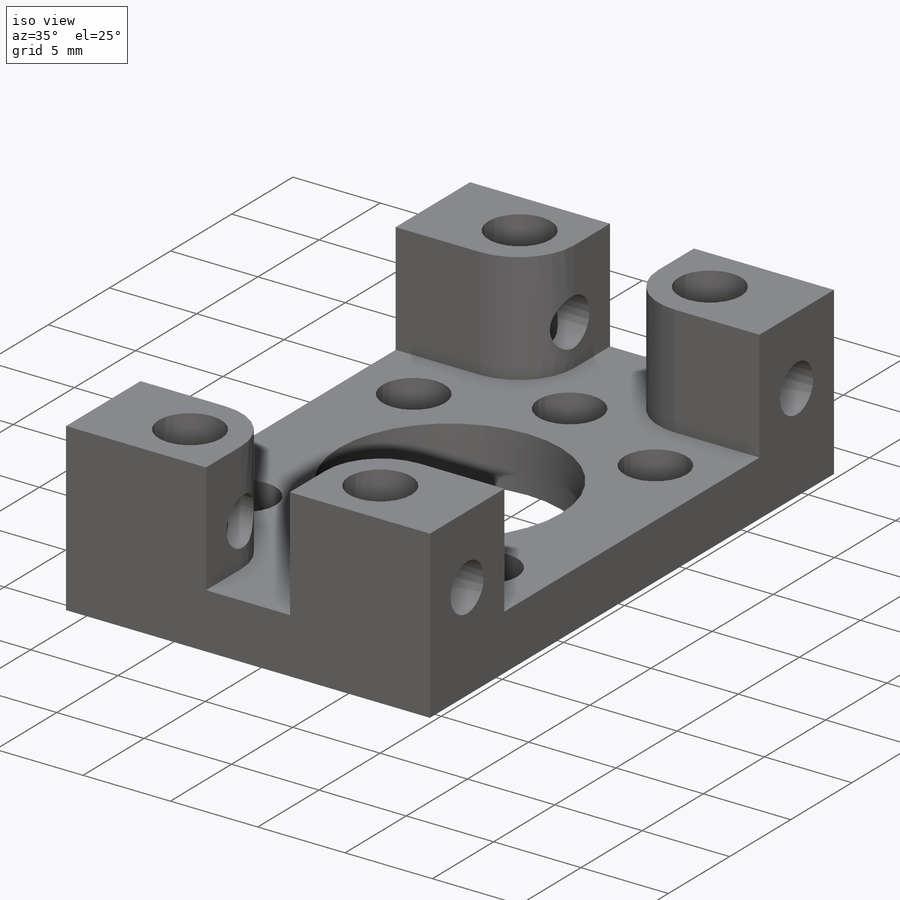
[diagram: iso view]
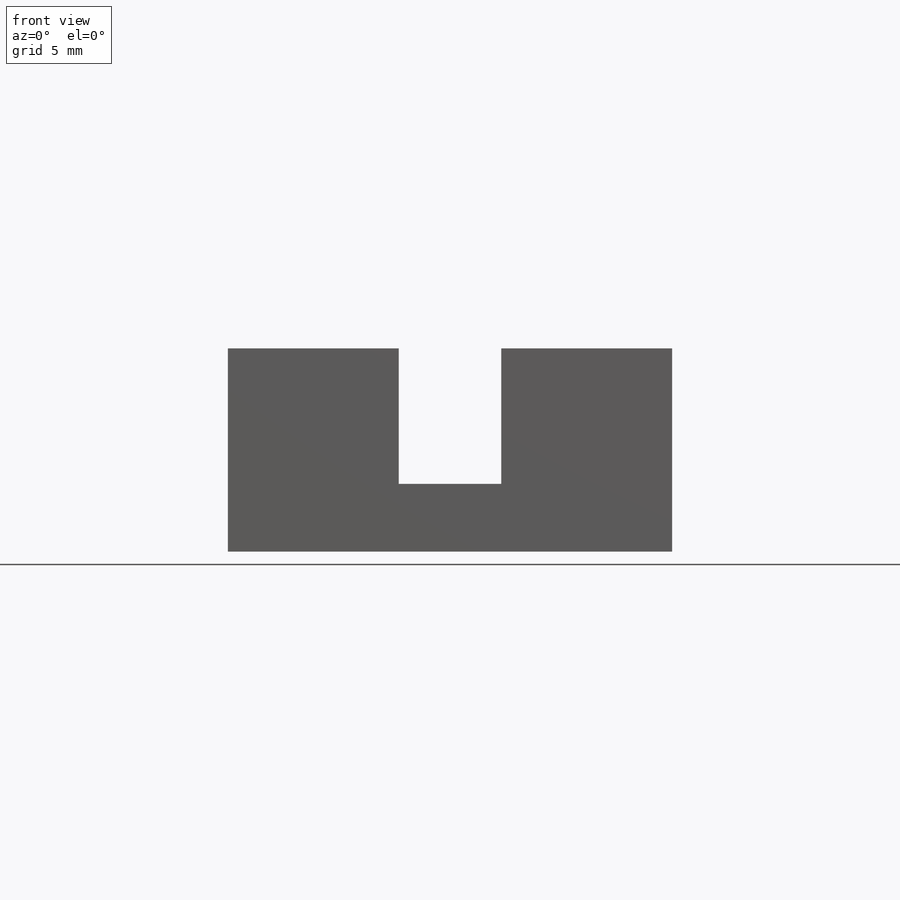
[diagram: front view]
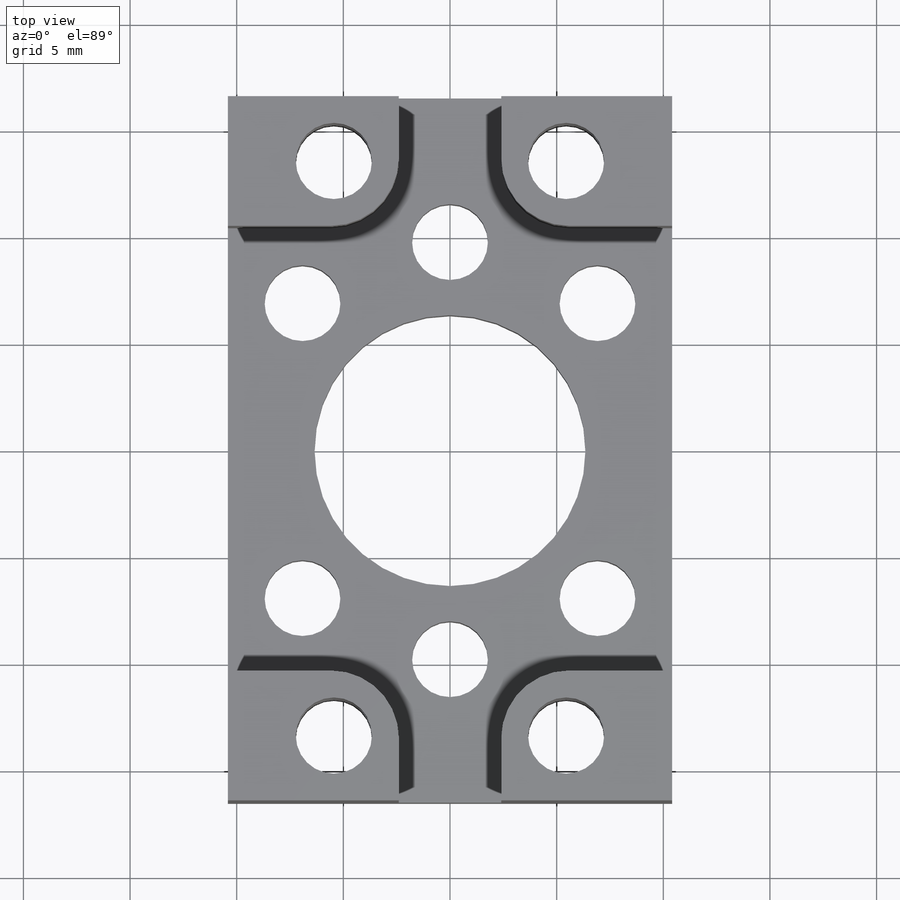
[diagram: top view]
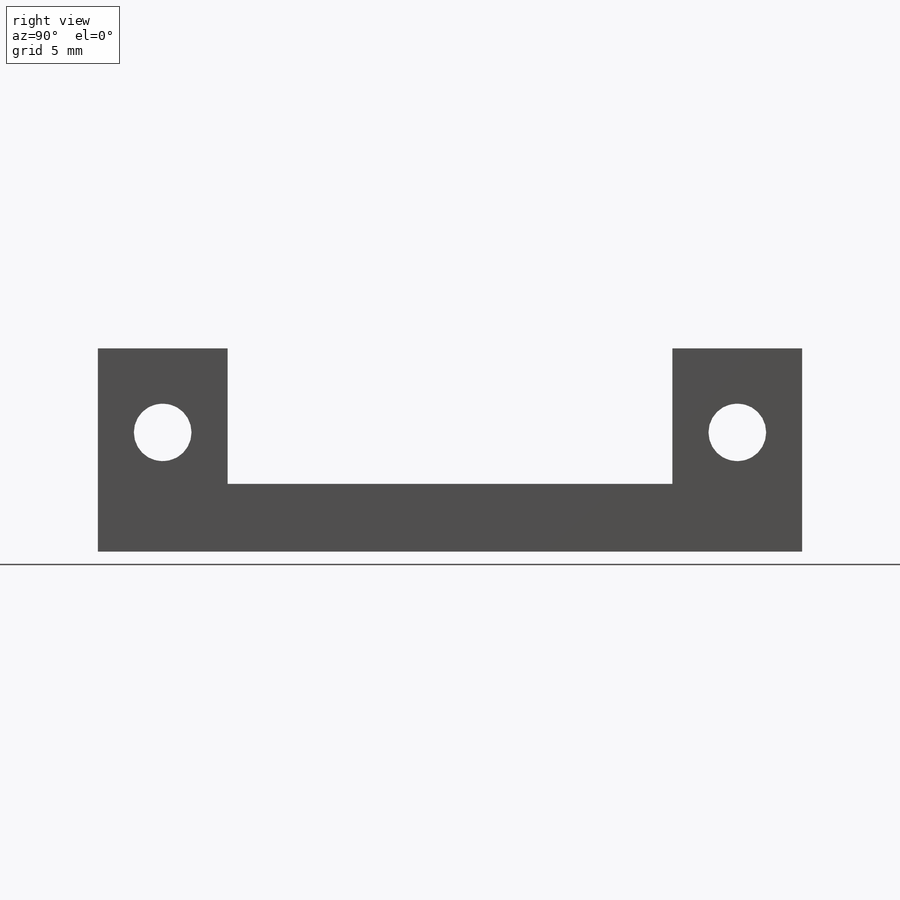
[diagram: right view]
SOLIDWORKS PART (.sldprt)
format: sldprt  version: not decoded by parser v0  size: 478,720 bytes
history: native  units: mm
features: sketch x9, thread x4, hole x3, extrude x2, material x1 (+14 scaffold rows collapsed)
feature tree (33):
  scaffold x14  (default folders/planes/origin — collapsed)
  material  "6061 Alloy"
  sketch  "Sketch1"  dims[c1.D3=~1.029612mm c1.D1=33.02mm c1.D2=20.828mm c2.D3=9.779mm c2.D4=8.0]
  extrude  "Boss-Extrude1"  Depth=3.175mm
  sketch  "Sketch2"  dims[D2=3.175mm D1=10.4267mm D3=5.5753mm]
  extrude  "Boss-Extrude2"  Depth=6.35mm
  hole  "9/64 (0.14063) Diameter Hole1"  Diameter=3.572002mm Depth=9.525mm
  sketch  "Sketch4"  dims[c1.D1=19.05mm c2.D1=45.0deg]
  sketch  "Sketch3"  dims[hole-wizard template sketch: 59 standard entries collapsed; hole parameters kept: c18.Thru Hole Dia.=~3.572002mm c18.Thru Hole Depth=9.525mm]
  sketch  "Sketch5"  dims[c1.D4=~1.556529mm c1.D1=5.588mm c1.D2=19.05mm c2.D2=135.0deg c3.D2=19.05mm c3.D3=~13.470384mm c4.D3=45.0deg]
  hole  "#6-32 Tapped Hole1"  [1 undecoded]
  sketch  "Sketch7"
  thread  "Hole Thread1"  Diameter=7.0104mm  [1 undecoded]
  thread  "Hole Thread2"  Diameter=7.0104mm  [1 undecoded]
  sketch  "Sketch6"  dims[hole-wizard template sketch: 47 standard entries collapsed; hole parameters kept: c15.Tap Drill Depth=8.0137mm c15.D3=~14.816244mm c15.Drill Angle=118.0deg]
  hole  "#6-32 Tapped Hole2"  [1 undecoded]
  sketch  "Sketch9"
  thread  "Hole Thread3"  Diameter=3.803164mm  [1 undecoded]
  thread  "Hole Thread4"  Diameter=3.803164mm  [1 undecoded]
  sketch  "Sketch8"  dims[hole-wizard template sketch: 47 standard entries collapsed; hole parameters kept: c15.Tap Drill Depth=8.0137mm c15.D3=~14.816244mm c15.Drill Angle=118.0deg]
decode coverage: 14 of 18 modeling features carry decoded parameters
note: ~ marks probable driven/reference dimensions
note: 6 parameter values undecoded
note: suppression state not decoded; provenance and decode notes live in map.json
